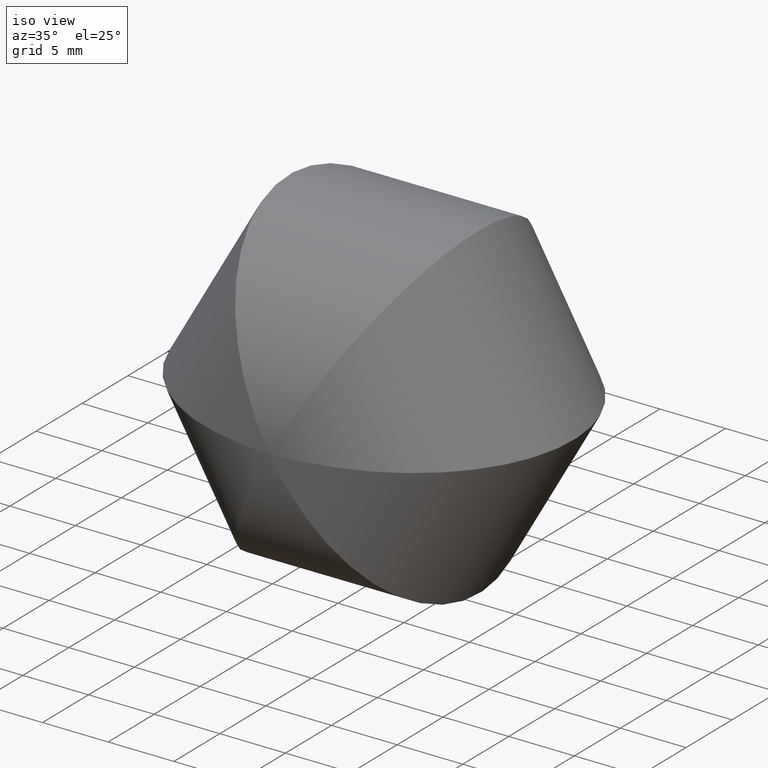
[diagram: clean part render]
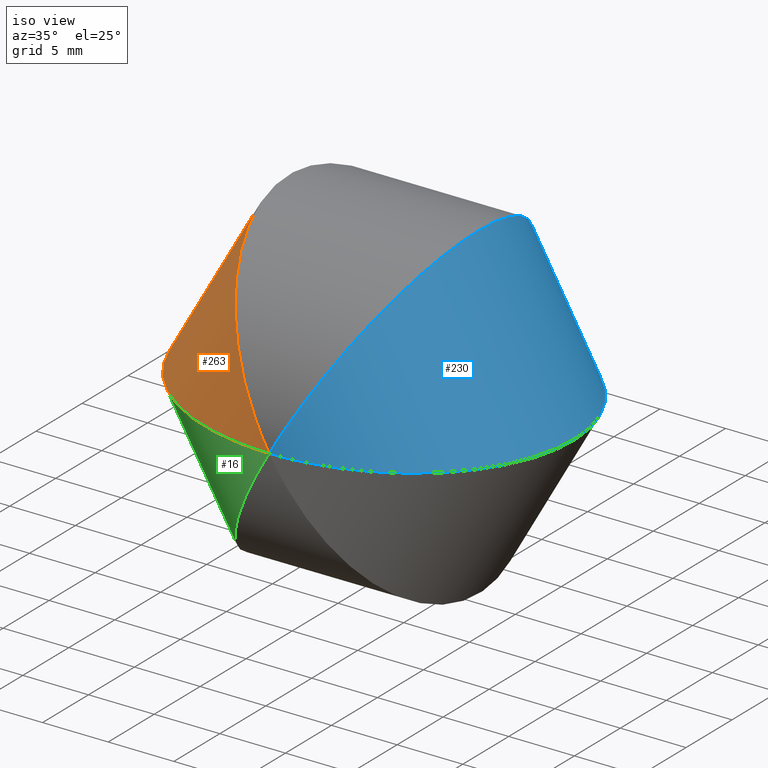
[diagram: same view with three faces highlighted in distinct colors, each labeled with its STEP entity id]
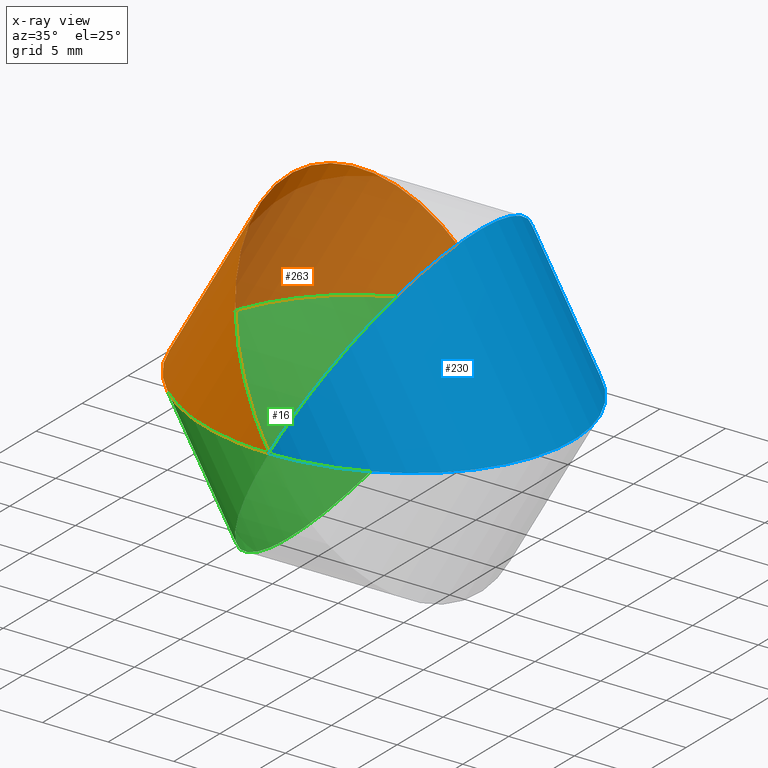
[diagram: x-ray of the same camera — body ghosted, the three highlighted faces saturated]
A machine part, iso view with three faces highlighted in distinct colors.
The next image is the same camera in x-ray (body ghosted, the three faces saturated) — at least one of them is partly hidden behind the body in this view.
Their STEP definitions:

[orange] entity #263 — the highlighted cylindrical surface (partial cylindrical patch) has radius 12.5 mm, axis along (-0.5, -0, -0.866).
#5 = VERTEX_POINT ( 'NONE', #180 ) ;
#34 = CARTESIAN_POINT ( 'NONE',  ( -3.469446951953614189E-15, 12.50000000000000000, 0.000000000000000000 ) ) ;
#40 = ORIENTED_EDGE ( 'NONE', *, *, #212, .T. ) ;
#50 = CARTESIAN_POINT ( 'NONE',  ( 3.469446951953614189E-15, -12.50000000000000000, 1.734723475976807094E-15 ) ) ;
#54 = CARTESIAN_POINT ( 'NONE',  ( -28.86751345948130520, -12.50000000000001066, -2.968450907054041726E-13 ) ) ;
#56 = EDGE_LOOP ( 'NONE', ( #40, #200 ) ) ;
#58 = CARTESIAN_POINT ( 'NONE',  ( -28.86751345948131586, 12.50000000000000000, -3.056832176947783610E-13 ) ) ;
#65 = FACE_OUTER_BOUND ( 'NONE', #56, .T. ) ;
#71 = VERTEX_POINT ( 'NONE', #164 ) ;
#72 = CARTESIAN_POINT ( 'NONE',  ( -14.43375672974079116, -12.50000000000000533, 25.00000000000000000 ) ) ;
#121 = CARTESIAN_POINT ( 'NONE',  ( -3.469446951953614189E-15, 12.50000000000000000, 0.000000000000000000 ) ) ;
#123 = DIRECTION ( 'NONE',  ( -0.4999999999999919509, -4.592425496802550306E-16, -0.8660254037844432595 ) ) ;
#155 = EDGE_CURVE ( 'NONE', #71, #5, #174, .T. ) ;
#161 =( BOUNDED_CURVE ( )  B_SPLINE_CURVE ( 3, ( #34, #58, #54, #219 ),
 .UNSPECIFIED., .F., .T. ) 
 B_SPLINE_CURVE_WITH_KNOTS ( ( 4, 4 ),
 ( 4.712388980384689674, 7.853981633974482790 ),
 .UNSPECIFIED. ) 
 CURVE ( )  GEOMETRIC_REPRESENTATION_ITEM ( )  RATIONAL_B_SPLINE_CURVE ( ( 1.000000000000000000, 0.3333333333333333703, 0.3333333333333333703, 1.000000000000000000 ) ) 
 REPRESENTATION_ITEM ( '' )  );
#164 = CARTESIAN_POINT ( 'NONE',  ( -3.469446951953614189E-15, 12.50000000000000000, 0.000000000000000000 ) ) ;
#174 =( BOUNDED_CURVE ( )  B_SPLINE_CURVE ( 3, ( #121, #238, #72, #50 ),
 .UNSPECIFIED., .F., .F. ) 
 B_SPLINE_CURVE_WITH_KNOTS ( ( 4, 4 ),
 ( 4.712388980384689674, 7.853981633974482790 ),
 .UNSPECIFIED. ) 
 CURVE ( )  GEOMETRIC_REPRESENTATION_ITEM ( )  RATIONAL_B_SPLINE_CURVE ( ( 1.000000000000000000, 0.3333333333333333703, 0.3333333333333333703, 1.000000000000000000 ) ) 
 REPRESENTATION_ITEM ( '' )  );
#180 = CARTESIAN_POINT ( 'NONE',  ( 3.469446951953614189E-15, -12.50000000000000000, 1.734723475976807094E-15 ) ) ;
#184 = CARTESIAN_POINT ( 'NONE',  ( 0.000000000000000000, 0.000000000000000000, -0.000000000000000000 ) ) ;
#194 = AXIS2_PLACEMENT_3D ( 'NONE', #184, #123, #202 ) ;
#200 = ORIENTED_EDGE ( 'NONE', *, *, #155, .F. ) ;
#202 = DIRECTION ( 'NONE',  ( -0.8660254037844432595, -2.651438096812281708E-16, 0.4999999999999919509 ) ) ;
#212 = EDGE_CURVE ( 'NONE', #71, #5, #161, .T. ) ;
#213 = CYLINDRICAL_SURFACE ( 'NONE', #194, 12.50000000000000000 ) ;
#219 = CARTESIAN_POINT ( 'NONE',  ( 3.469446951953614189E-15, -12.50000000000000000, 1.734723475976807094E-15 ) ) ;
#238 = CARTESIAN_POINT ( 'NONE',  ( -14.43375672974080715, 12.50000000000000000, 25.00000000000000000 ) ) ;
#263 = ADVANCED_FACE ( 'NONE', ( #65 ), #213, .T. ) ;

[blue] entity #230 — the highlighted cylindrical surface (partial cylindrical patch) has radius 12.5 mm, axis along (-0.5, -0, 0.866).
#5 = VERTEX_POINT ( 'NONE', #180 ) ;
#19 = ORIENTED_EDGE ( 'NONE', *, *, #215, .T. ) ;
#27 = ORIENTED_EDGE ( 'NONE', *, *, #48, .F. ) ;
#28 = CARTESIAN_POINT ( 'NONE',  ( -3.469446951953614189E-15, 12.50000000000000000, 0.000000000000000000 ) ) ;
#45 = CYLINDRICAL_SURFACE ( 'NONE', #163, 12.50000000000000533 ) ;
#48 = EDGE_CURVE ( 'NONE', #71, #5, #128, .T. ) ;
#49 = CARTESIAN_POINT ( 'NONE',  ( 28.86751345948130520, 12.50000000000001599, 1.005671978138651586E-13 ) ) ;
#71 = VERTEX_POINT ( 'NONE', #164 ) ;
#80 = FACE_OUTER_BOUND ( 'NONE', #124, .T. ) ;
#100 = CARTESIAN_POINT ( 'NONE',  ( -0.000000000000000000, 0.000000000000000000, 0.000000000000000000 ) ) ;
#107 =( BOUNDED_CURVE ( )  B_SPLINE_CURVE ( 3, ( #259, #165, #146, #242 ),
 .UNSPECIFIED., .F., .T. ) 
 B_SPLINE_CURVE_WITH_KNOTS ( ( 4, 4 ),
 ( 4.712388980384689674, 7.853981633974482790 ),
 .UNSPECIFIED. ) 
 CURVE ( )  GEOMETRIC_REPRESENTATION_ITEM ( )  RATIONAL_B_SPLINE_CURVE ( ( 1.000000000000000000, 0.3333333333333333703, 0.3333333333333333703, 1.000000000000000000 ) ) 
 REPRESENTATION_ITEM ( '' )  );
#124 = EDGE_LOOP ( 'NONE', ( #19, #27 ) ) ;
#128 =( BOUNDED_CURVE ( )  B_SPLINE_CURVE ( 3, ( #28, #49, #257, #197 ),
 .UNSPECIFIED., .F., .T. ) 
 B_SPLINE_CURVE_WITH_KNOTS ( ( 4, 4 ),
 ( 4.712388980384689674, 7.853981633974482790 ),
 .UNSPECIFIED. ) 
 CURVE ( )  GEOMETRIC_REPRESENTATION_ITEM ( )  RATIONAL_B_SPLINE_CURVE ( ( 1.000000000000000000, 0.3333333333333333703, 0.3333333333333333703, 1.000000000000000000 ) ) 
 REPRESENTATION_ITEM ( '' )  );
#129 = DIRECTION ( 'NONE',  ( 0.8660254037844362651, 2.651438096812259522E-16, 0.5000000000000038858 ) ) ;
#146 = CARTESIAN_POINT ( 'NONE',  ( 14.43375672974057267, -12.49999999999999467, 25.00000000000000000 ) ) ;
#163 = AXIS2_PLACEMENT_3D ( 'NONE', #100, #168, #129 ) ;
#164 = CARTESIAN_POINT ( 'NONE',  ( -3.469446951953614189E-15, 12.50000000000000000, 0.000000000000000000 ) ) ;
#165 = CARTESIAN_POINT ( 'NONE',  ( 14.43375672974055313, 12.50000000000001066, 25.00000000000000000 ) ) ;
#168 = DIRECTION ( 'NONE',  ( -0.5000000000000041078, -4.592425496802587777E-16, 0.8660254037844363761 ) ) ;
#180 = CARTESIAN_POINT ( 'NONE',  ( 3.469446951953614189E-15, -12.50000000000000000, 1.734723475976807094E-15 ) ) ;
#197 = CARTESIAN_POINT ( 'NONE',  ( 3.469446951953614189E-15, -12.50000000000000000, 1.734723475976807094E-15 ) ) ;
#215 = EDGE_CURVE ( 'NONE', #71, #5, #107, .T. ) ;
#230 = ADVANCED_FACE ( 'NONE', ( #80 ), #45, .T. ) ;
#242 = CARTESIAN_POINT ( 'NONE',  ( 3.469446951953614189E-15, -12.50000000000000000, 1.734723475976807094E-15 ) ) ;
#257 = CARTESIAN_POINT ( 'NONE',  ( 28.86751345948131586, -12.49999999999999112, 9.172907082449091971E-14 ) ) ;
#259 = CARTESIAN_POINT ( 'NONE',  ( -3.469446951953614189E-15, 12.50000000000000000, 0.000000000000000000 ) ) ;

[green] entity #16 — the highlighted cylindrical surface (partial cylindrical patch) has radius 12.5 mm, axis along (-0.5, -0, 0.866).
#5 = VERTEX_POINT ( 'NONE', #180 ) ;
#9 = CARTESIAN_POINT ( 'NONE',  ( -0.000000000000000000, 0.000000000000000000, 0.000000000000000000 ) ) ;
#10 = DIRECTION ( 'NONE',  ( 0.8660254037844362651, 2.651438096812259522E-16, 0.5000000000000038858 ) ) ;
#16 = ADVANCED_FACE ( 'NONE', ( #186 ), #84, .T. ) ;
#23 = EDGE_LOOP ( 'NONE', ( #254, #68 ) ) ;
#29 = DIRECTION ( 'NONE',  ( -0.5000000000000041078, -4.592425496802587777E-16, 0.8660254037844363761 ) ) ;
#34 = CARTESIAN_POINT ( 'NONE',  ( -3.469446951953614189E-15, 12.50000000000000000, 0.000000000000000000 ) ) ;
#44 = EDGE_CURVE ( 'NONE', #5, #71, #142, .T. ) ;
#52 = CARTESIAN_POINT ( 'NONE',  ( -14.43375672974055668, -12.50000000000000533, -25.00000000000000000 ) ) ;
#54 = CARTESIAN_POINT ( 'NONE',  ( -28.86751345948130520, -12.50000000000001066, -2.968450907054041726E-13 ) ) ;
#58 = CARTESIAN_POINT ( 'NONE',  ( -28.86751345948131586, 12.50000000000000000, -3.056832176947783610E-13 ) ) ;
#68 = ORIENTED_EDGE ( 'NONE', *, *, #44, .F. ) ;
#71 = VERTEX_POINT ( 'NONE', #164 ) ;
#84 = CYLINDRICAL_SURFACE ( 'NONE', #246, 12.50000000000000533 ) ;
#97 = CARTESIAN_POINT ( 'NONE',  ( 3.469446951953614189E-15, -12.50000000000000000, 1.734723475976807094E-15 ) ) ;
#142 =( BOUNDED_CURVE ( )  B_SPLINE_CURVE ( 3, ( #97, #52, #181, #177 ),
 .UNSPECIFIED., .F., .F. ) 
 B_SPLINE_CURVE_WITH_KNOTS ( ( 4, 4 ),
 ( 1.570796326794895892, 4.712388980384688786 ),
 .UNSPECIFIED. ) 
 CURVE ( )  GEOMETRIC_REPRESENTATION_ITEM ( )  RATIONAL_B_SPLINE_CURVE ( ( 1.000000000000000000, 0.3333333333333333703, 0.3333333333333333703, 1.000000000000000000 ) ) 
 REPRESENTATION_ITEM ( '' )  );
#161 =( BOUNDED_CURVE ( )  B_SPLINE_CURVE ( 3, ( #34, #58, #54, #219 ),
 .UNSPECIFIED., .F., .T. ) 
 B_SPLINE_CURVE_WITH_KNOTS ( ( 4, 4 ),
 ( 4.712388980384689674, 7.853981633974482790 ),
 .UNSPECIFIED. ) 
 CURVE ( )  GEOMETRIC_REPRESENTATION_ITEM ( )  RATIONAL_B_SPLINE_CURVE ( ( 1.000000000000000000, 0.3333333333333333703, 0.3333333333333333703, 1.000000000000000000 ) ) 
 REPRESENTATION_ITEM ( '' )  );
#164 = CARTESIAN_POINT ( 'NONE',  ( -3.469446951953614189E-15, 12.50000000000000000, 0.000000000000000000 ) ) ;
#177 = CARTESIAN_POINT ( 'NONE',  ( -3.469446951953614189E-15, 12.50000000000000000, 0.000000000000000000 ) ) ;
#180 = CARTESIAN_POINT ( 'NONE',  ( 3.469446951953614189E-15, -12.50000000000000000, 1.734723475976807094E-15 ) ) ;
#181 = CARTESIAN_POINT ( 'NONE',  ( -14.43375672974056911, 12.49999999999998934, -25.00000000000001066 ) ) ;
#186 = FACE_OUTER_BOUND ( 'NONE', #23, .T. ) ;
#212 = EDGE_CURVE ( 'NONE', #71, #5, #161, .T. ) ;
#219 = CARTESIAN_POINT ( 'NONE',  ( 3.469446951953614189E-15, -12.50000000000000000, 1.734723475976807094E-15 ) ) ;
#246 = AXIS2_PLACEMENT_3D ( 'NONE', #9, #29, #10 ) ;
#254 = ORIENTED_EDGE ( 'NONE', *, *, #212, .F. ) ;